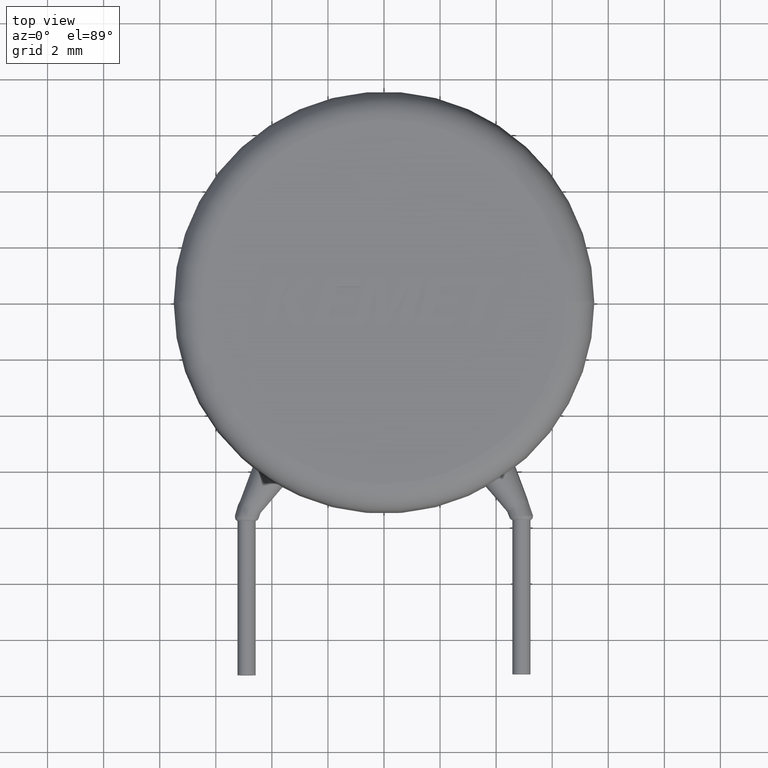
[diagram: clean part render]
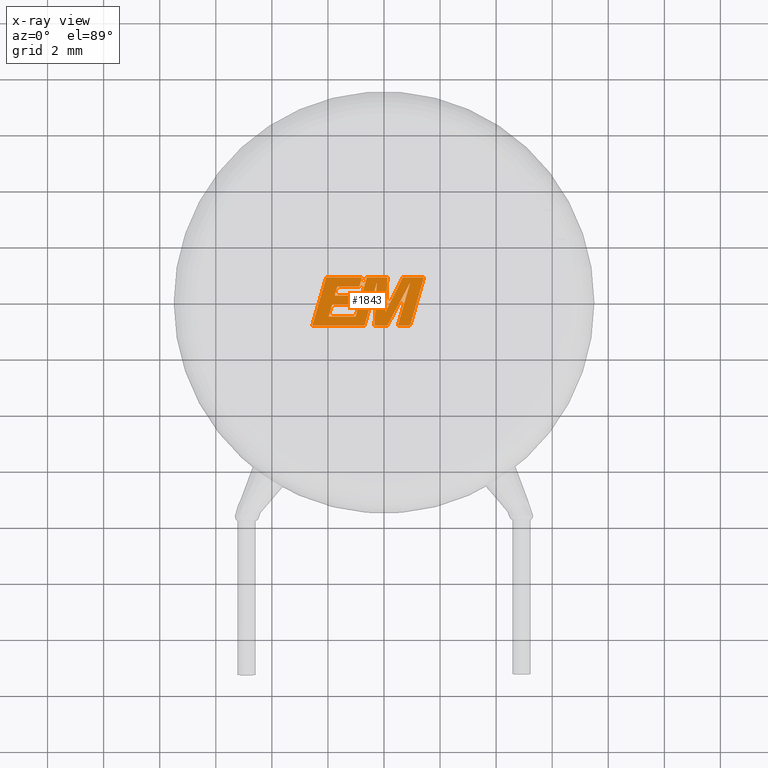
[diagram: x-ray — body ghosted, one internal face saturated and labeled with its STEP entity id]
A machine part, top view, then the same camera in x-ray: the body is ghosted and one INTERNAL B-rep face — a face not visible from any outside direction — is saturated and labeled: STEP entity #1843.
In plain terms, the highlighted planar face has unit normal (0, 0, -1).
Its self-contained STEP definition (entity closure, byte-faithful):
#50 = CARTESIAN_POINT ( 'NONE',  ( -1.017504459718363300, 0.2098571091604507800, 5.000000000000000000 ) ) ;
#81 = EDGE_CURVE ( 'NONE', #683, #3268, #2458, .T. ) ;
#82 = VECTOR ( 'NONE', #2614, 1000.000000000000200 ) ;
#92 = VERTEX_POINT ( 'NONE', #3478 ) ;
#97 = CARTESIAN_POINT ( 'NONE',  ( -0.6125567032797602000, 0.8602294998000967800, 5.000000000000000000 ) ) ;
#99 = EDGE_CURVE ( 'NONE', #1862, #3278, #4065, .T. ) ;
#152 = LINE ( 'NONE', #2195, #1736 ) ;
#172 = VECTOR ( 'NONE', #4019, 1000.000000000000000 ) ;
#194 = LINE ( 'NONE', #3070, #3545 ) ;
#228 = CARTESIAN_POINT ( 'NONE',  ( 0.9351417871598828300, 0.6780171967097181600, 5.000000000000000000 ) ) ;
#237 = EDGE_CURVE ( 'NONE', #3530, #2532, #152, .T. ) ;
#249 = DIRECTION ( 'NONE',  ( -1.000000000000000000, 0.0000000000000000000, 0.0000000000000000000 ) ) ;
#251 = CARTESIAN_POINT ( 'NONE',  ( -1.972762061372847200, -0.5391223143760577300, 5.000000000000000000 ) ) ;
#272 = VERTEX_POINT ( 'NONE', #4120 ) ;
#281 = CARTESIAN_POINT ( 'NONE',  ( -0.2554201702473944400, 0.6706082701233900800, 5.000000000000000000 ) ) ;
#312 = ORIENTED_EDGE ( 'NONE', *, *, #1623, .F. ) ;
#326 = DIRECTION ( 'NONE',  ( -0.2760118818968563800, -0.9611542233438689100, 0.0000000000000000000 ) ) ;
#359 = ORIENTED_EDGE ( 'NONE', *, *, #3674, .F. ) ;
#385 = DIRECTION ( 'NONE',  ( 1.000000000000000000, 3.776457229960508900E-016, 0.0000000000000000000 ) ) ;
#397 = DIRECTION ( 'NONE',  ( -0.2765379750249957200, -0.9610029908221278100, 0.0000000000000000000 ) ) ;
#402 = CARTESIAN_POINT ( 'NONE',  ( -0.8783532583318647300, 0.5312889228852595300, 5.000000000000000000 ) ) ;
#404 = VERTEX_POINT ( 'NONE', #2654 ) ;
#410 = CARTESIAN_POINT ( 'NONE',  ( -2.061611380304933400, 0.8602294998000965500, 5.000000000000000000 ) ) ;
#424 = VERTEX_POINT ( 'NONE', #3937 ) ;
#432 = CARTESIAN_POINT ( 'NONE',  ( -0.7849272194875383000, 0.8602294998000967800, 5.000000000000000000 ) ) ;
#440 = VECTOR ( 'NONE', #3413, 1000.000000000000100 ) ;
#442 = CARTESIAN_POINT ( 'NONE',  ( 0.1233925116584889700, 0.8602294998000970000, 5.000000000000000000 ) ) ;
#463 = ORIENTED_EDGE ( 'NONE', *, *, #2191, .F. ) ;
#478 = VERTEX_POINT ( 'NONE', #3644 ) ;
#509 = ORIENTED_EDGE ( 'NONE', *, *, #1857, .F. ) ;
#513 = EDGE_CURVE ( 'NONE', #404, #272, #1519, .T. ) ;
#521 = LINE ( 'NONE', #4022, #1929 ) ;
#525 = DIRECTION ( 'NONE',  ( -1.000000000000000000, -9.098923155897415200E-017, 0.0000000000000000000 ) ) ;
#596 = CARTESIAN_POINT ( 'NONE',  ( -1.850383408691019600, -0.1096147544810094200, 5.000000000000000000 ) ) ;
#599 = EDGE_CURVE ( 'NONE', #4091, #1862, #194, .T. ) ;
#624 = VERTEX_POINT ( 'NONE', #2554 ) ;
#637 = EDGE_CURVE ( 'NONE', #92, #404, #938, .T. ) ;
#664 = CARTESIAN_POINT ( 'NONE',  ( 1.427199603882118400, 0.8602294998000972200, 5.000000000000000000 ) ) ;
#683 = VERTEX_POINT ( 'NONE', #2988 ) ;
#770 = DIRECTION ( 'NONE',  ( -1.000000000000000000, -3.156862141527944500E-016, 0.0000000000000000000 ) ) ;
#816 = VERTEX_POINT ( 'NONE', #1365 ) ;
#818 = DIRECTION ( 'NONE',  ( 0.2740217765954076100, 0.9617234872620593600, 0.0000000000000000000 ) ) ;
#842 = VECTOR ( 'NONE', #397, 1000.000000000000200 ) ;
#847 = DIRECTION ( 'NONE',  ( 0.2793947940878323000, 0.9601763114327586100, 0.0000000000000000000 ) ) ;
#865 = ORIENTED_EDGE ( 'NONE', *, *, #3880, .F. ) ;
#896 = CARTESIAN_POINT ( 'NONE',  ( -0.3416579739304280700, -0.8679000000000540700, 5.000000000000000000 ) ) ;
#923 = DIRECTION ( 'NONE',  ( 1.000000000000000000, 0.0000000000000000000, 0.0000000000000000000 ) ) ;
#931 = LINE ( 'NONE', #1615, #82 ) ;
#936 = LINE ( 'NONE', #2844, #2789 ) ;
#938 = LINE ( 'NONE', #4156, #3748 ) ;
#964 = CARTESIAN_POINT ( 'NONE',  ( -1.017504459718363300, 0.2098571091604507800, 5.000000000000000000 ) ) ;
#973 = VERTEX_POINT ( 'NONE', #2884 ) ;
#988 = CARTESIAN_POINT ( 'NONE',  ( 0.1190458960107351500, -0.8679000000000538500, 5.000000000000000000 ) ) ;
#991 = VERTEX_POINT ( 'NONE', #1883 ) ;
#1039 = VERTEX_POINT ( 'NONE', #97 ) ;
#1043 = ORIENTED_EDGE ( 'NONE', *, *, #2027, .F. ) ;
#1065 = VECTOR ( 'NONE', #2305, 1000.000000000000000 ) ;
#1066 = CARTESIAN_POINT ( 'NONE',  ( -1.665706717958818100, 0.5312889228852595300, 5.000000000000000000 ) ) ;
#1077 = EDGE_CURVE ( 'NONE', #3338, #424, #3283, .T. ) ;
#1092 = ORIENTED_EDGE ( 'NONE', *, *, #637, .F. ) ;
#1112 = DIRECTION ( 'NONE',  ( 0.2746459304916913900, 0.9615454294334474500, 0.0000000000000000000 ) ) ;
#1136 = LINE ( 'NONE', #2286, #3636 ) ;
#1141 = ORIENTED_EDGE ( 'NONE', *, *, #2514, .F. ) ;
#1173 = CARTESIAN_POINT ( 'NONE',  ( -0.7849272194875383000, 0.8602294998000967800, 5.000000000000000000 ) ) ;
#1213 = EDGE_CURVE ( 'NONE', #973, #816, #2167, .T. ) ;
#1242 = ORIENTED_EDGE ( 'NONE', *, *, #513, .F. ) ;
#1299 = VECTOR ( 'NONE', #2719, 1000.000000000000000 ) ;
#1322 = ORIENTED_EDGE ( 'NONE', *, *, #237, .F. ) ;
#1328 = DIRECTION ( 'NONE',  ( -1.000000000000000000, 0.0000000000000000000, 0.0000000000000000000 ) ) ;
#1349 = VERTEX_POINT ( 'NONE', #251 ) ;
#1363 = VECTOR ( 'NONE', #818, 1000.000000000000200 ) ;
#1365 = CARTESIAN_POINT ( 'NONE',  ( 0.9303496303870425500, -0.8679000000000538500, 5.000000000000000000 ) ) ;
#1381 = CARTESIAN_POINT ( 'NONE',  ( 1.427199603882118400, 0.8602294998000972200, 5.000000000000000000 ) ) ;
#1405 = ORIENTED_EDGE ( 'NONE', *, *, #3152, .F. ) ;
#1406 = ORIENTED_EDGE ( 'NONE', *, *, #599, .F. ) ;
#1519 = LINE ( 'NONE', #1796, #440 ) ;
#1566 = VECTOR ( 'NONE', #2376, 999.9999999999998900 ) ;
#1567 = AXIS2_PLACEMENT_3D ( 'NONE', #1892, #2199, #249 ) ;
#1574 = VECTOR ( 'NONE', #2432, 1000.000000000000000 ) ;
#1577 = DIRECTION ( 'NONE',  ( -0.05596501978068215600, -0.9984327301130245800, 0.0000000000000000000 ) ) ;
#1606 = DIRECTION ( 'NONE',  ( 1.000000000000000000, 2.645246203865972700E-016, 0.0000000000000000000 ) ) ;
#1615 = CARTESIAN_POINT ( 'NONE',  ( -0.6125567032797602000, 0.8602294998000967800, 5.000000000000000000 ) ) ;
#1623 = EDGE_CURVE ( 'NONE', #2787, #3530, #2166, .T. ) ;
#1655 = EDGE_CURVE ( 'NONE', #816, #3539, #521, .T. ) ;
#1689 = CARTESIAN_POINT ( 'NONE',  ( -1.665706717958818100, 0.5312889228852595300, 5.000000000000000000 ) ) ;
#1711 = VERTEX_POINT ( 'NONE', #3767 ) ;
#1736 = VECTOR ( 'NONE', #1854, 1000.000000000000100 ) ;
#1751 = VECTOR ( 'NONE', #3434, 1000.000000000000000 ) ;
#1769 = VECTOR ( 'NONE', #1606, 1000.000000000000000 ) ;
#1796 = CARTESIAN_POINT ( 'NONE',  ( -0.6971708499694481100, -0.8679000000000540700, 5.000000000000000000 ) ) ;
#1818 = CARTESIAN_POINT ( 'NONE',  ( 0.6692537587565817700, 0.8602294998000970000, 5.000000000000000000 ) ) ;
#1843 = ADVANCED_FACE ( 'NONE', ( #3843 ), #2490, .T. ) ;
#1854 = DIRECTION ( 'NONE',  ( 0.2732148821745866200, 0.9619530280415601300, 0.0000000000000000000 ) ) ;
#1857 = EDGE_CURVE ( 'NONE', #2532, #991, #3223, .T. ) ;
#1862 = VERTEX_POINT ( 'NONE', #2816 ) ;
#1883 = CARTESIAN_POINT ( 'NONE',  ( -2.061611380304933400, 0.8602294998000965500, 5.000000000000000000 ) ) ;
#1892 = CARTESIAN_POINT ( 'NONE',  ( 0.05747670520601499300, 0.1583361317231066200, 4.999999999999998200 ) ) ;
#1929 = VECTOR ( 'NONE', #3969, 1000.000000000000000 ) ;
#1965 = EDGE_CURVE ( 'NONE', #3278, #973, #1136, .T. ) ;
#1971 = ORIENTED_EDGE ( 'NONE', *, *, #81, .F. ) ;
#2027 = EDGE_CURVE ( 'NONE', #424, #1039, #2983, .T. ) ;
#2045 = CARTESIAN_POINT ( 'NONE',  ( 0.05693359268403499300, -0.3743684185971242200, 5.000000000000000000 ) ) ;
#2071 = EDGE_LOOP ( 'NONE', ( #1141, #3222, #2771, #2081, #3085, #1406, #3777, #1242, #1092, #2491, #509, #1322, #312, #463, #2153, #359, #1971, #3128, #4171, #865, #1043, #3255, #1405 ) ) ;
#2081 = ORIENTED_EDGE ( 'NONE', *, *, #1965, .F. ) ;
#2131 = LINE ( 'NONE', #410, #842 ) ;
#2132 = DIRECTION ( 'NONE',  ( 1.000000000000000000, 2.521457237837486500E-016, 0.0000000000000000000 ) ) ;
#2153 = ORIENTED_EDGE ( 'NONE', *, *, #2437, .F. ) ;
#2166 = LINE ( 'NONE', #1066, #1299 ) ;
#2167 = LINE ( 'NONE', #2879, #1769 ) ;
#2191 = EDGE_CURVE ( 'NONE', #624, #2787, #4040, .T. ) ;
#2195 = CARTESIAN_POINT ( 'NONE',  ( -0.8783532583318647300, 0.5312889228852595300, 5.000000000000000000 ) ) ;
#2196 = LINE ( 'NONE', #4062, #1751 ) ;
#2199 = DIRECTION ( 'NONE',  ( 0.0000000000000000000, 0.0000000000000000000, -1.000000000000000000 ) ) ;
#2200 = VERTEX_POINT ( 'NONE', #964 ) ;
#2257 = EDGE_CURVE ( 'NONE', #272, #4091, #4172, .T. ) ;
#2286 = CARTESIAN_POINT ( 'NONE',  ( 0.9351417871598828300, 0.6780171967097181600, 5.000000000000000000 ) ) ;
#2305 = DIRECTION ( 'NONE',  ( 0.4668459304955212600, 0.8843386665637610300, 0.0000000000000000000 ) ) ;
#2376 = DIRECTION ( 'NONE',  ( 0.05375259206908306100, 0.9985542843760948400, 0.0000000000000000000 ) ) ;
#2430 = VECTOR ( 'NONE', #770, 1000.000000000000000 ) ;
#2432 = DIRECTION ( 'NONE',  ( -0.4443210308329058600, -0.8958676361827030400, 0.0000000000000000000 ) ) ;
#2437 = EDGE_CURVE ( 'NONE', #2200, #624, #3684, .T. ) ;
#2449 = CARTESIAN_POINT ( 'NONE',  ( 0.05693359268403499300, -0.3743684185971242200, 5.000000000000000000 ) ) ;
#2458 = LINE ( 'NONE', #596, #2606 ) ;
#2490 = PLANE ( 'NONE',  #1567 ) ;
#2491 = ORIENTED_EDGE ( 'NONE', *, *, #2888, .F. ) ;
#2514 = EDGE_CURVE ( 'NONE', #3539, #478, #3827, .T. ) ;
#2532 = VERTEX_POINT ( 'NONE', #432 ) ;
#2554 = CARTESIAN_POINT ( 'NONE',  ( -1.759237847960259100, 0.2098571091604507800, 5.000000000000000000 ) ) ;
#2585 = VECTOR ( 'NONE', #525, 1000.000000000000000 ) ;
#2606 = VECTOR ( 'NONE', #923, 1000.000000000000000 ) ;
#2614 = DIRECTION ( 'NONE',  ( -0.2762517575166125700, -0.9610853065513916800, 0.0000000000000000000 ) ) ;
#2649 = EDGE_CURVE ( 'NONE', #1711, #1349, #2196, .T. ) ;
#2654 = CARTESIAN_POINT ( 'NONE',  ( -0.6971708499694481100, -0.8679000000000540700, 5.000000000000000000 ) ) ;
#2719 = DIRECTION ( 'NONE',  ( 1.000000000000000000, 0.0000000000000000000, 0.0000000000000000000 ) ) ;
#2771 = ORIENTED_EDGE ( 'NONE', *, *, #1213, .F. ) ;
#2787 = VERTEX_POINT ( 'NONE', #1689 ) ;
#2789 = VECTOR ( 'NONE', #1112, 1000.000000000000100 ) ;
#2816 = CARTESIAN_POINT ( 'NONE',  ( 0.1190458960107351500, -0.8679000000000538500, 5.000000000000000000 ) ) ;
#2844 = CARTESIAN_POINT ( 'NONE',  ( -1.108755111606357600, -0.1096147544810094200, 5.000000000000000000 ) ) ;
#2879 = CARTESIAN_POINT ( 'NONE',  ( 0.4912052113665498800, -0.8679000000000538500, 5.000000000000000000 ) ) ;
#2884 = CARTESIAN_POINT ( 'NONE',  ( 0.4912052113665498800, -0.8679000000000538500, 5.000000000000000000 ) ) ;
#2888 = EDGE_CURVE ( 'NONE', #991, #92, #2131, .T. ) ;
#2979 = VECTOR ( 'NONE', #1328, 1000.000000000000000 ) ;
#2983 = LINE ( 'NONE', #442, #2430 ) ;
#2988 = CARTESIAN_POINT ( 'NONE',  ( -1.850383408691019600, -0.1096147544810094200, 5.000000000000000000 ) ) ;
#3070 = CARTESIAN_POINT ( 'NONE',  ( -0.3416579739304280700, -0.8679000000000540700, 5.000000000000000000 ) ) ;
#3085 = ORIENTED_EDGE ( 'NONE', *, *, #99, .F. ) ;
#3128 = ORIENTED_EDGE ( 'NONE', *, *, #3427, .F. ) ;
#3152 = EDGE_CURVE ( 'NONE', #478, #3338, #3296, .T. ) ;
#3208 = CARTESIAN_POINT ( 'NONE',  ( -1.108755111606357600, -0.1096147544810094200, 5.000000000000000000 ) ) ;
#3222 = ORIENTED_EDGE ( 'NONE', *, *, #1655, .F. ) ;
#3223 = LINE ( 'NONE', #1173, #2585 ) ;
#3255 = ORIENTED_EDGE ( 'NONE', *, *, #1077, .F. ) ;
#3268 = VERTEX_POINT ( 'NONE', #3208 ) ;
#3278 = VERTEX_POINT ( 'NONE', #228 ) ;
#3283 = LINE ( 'NONE', #2045, #1566 ) ;
#3296 = LINE ( 'NONE', #1818, #1574 ) ;
#3331 = VECTOR ( 'NONE', #1577, 1000.000000000000100 ) ;
#3338 = VERTEX_POINT ( 'NONE', #2449 ) ;
#3413 = DIRECTION ( 'NONE',  ( 0.2759782365590801000, 0.9611638845408936300, 0.0000000000000000000 ) ) ;
#3421 = CARTESIAN_POINT ( 'NONE',  ( -1.972762061372847200, -0.5391223143760577300, 5.000000000000000000 ) ) ;
#3427 = EDGE_CURVE ( 'NONE', #1349, #683, #4143, .T. ) ;
#3434 = DIRECTION ( 'NONE',  ( -1.000000000000000000, 0.0000000000000000000, 0.0000000000000000000 ) ) ;
#3478 = CARTESIAN_POINT ( 'NONE',  ( -2.558897483490585300, -0.8679000000000545200, 5.000000000000000000 ) ) ;
#3530 = VERTEX_POINT ( 'NONE', #402 ) ;
#3539 = VERTEX_POINT ( 'NONE', #1381 ) ;
#3545 = VECTOR ( 'NONE', #2132, 1000.000000000000000 ) ;
#3579 = VECTOR ( 'NONE', #847, 1000.000000000000100 ) ;
#3636 = VECTOR ( 'NONE', #326, 1000.000000000000100 ) ;
#3644 = CARTESIAN_POINT ( 'NONE',  ( 0.6692537587565817700, 0.8602294998000970000, 5.000000000000000000 ) ) ;
#3674 = EDGE_CURVE ( 'NONE', #3268, #2200, #936, .T. ) ;
#3684 = LINE ( 'NONE', #50, #2979 ) ;
#3748 = VECTOR ( 'NONE', #385, 1000.000000000000000 ) ;
#3767 = CARTESIAN_POINT ( 'NONE',  ( -1.014782598749271100, -0.5391223143760577300, 5.000000000000000000 ) ) ;
#3771 = CARTESIAN_POINT ( 'NONE',  ( -1.759237847960259100, 0.2098571091604507800, 5.000000000000000000 ) ) ;
#3777 = ORIENTED_EDGE ( 'NONE', *, *, #2257, .F. ) ;
#3827 = LINE ( 'NONE', #664, #172 ) ;
#3843 = FACE_OUTER_BOUND ( 'NONE', #2071, .T. ) ;
#3880 = EDGE_CURVE ( 'NONE', #1039, #1711, #931, .T. ) ;
#3937 = CARTESIAN_POINT ( 'NONE',  ( 0.1233925116584889700, 0.8602294998000970000, 5.000000000000000000 ) ) ;
#3969 = DIRECTION ( 'NONE',  ( 0.2763139702539116900, 0.9610674221107072800, 0.0000000000000000000 ) ) ;
#4019 = DIRECTION ( 'NONE',  ( -1.000000000000000000, -3.065245663218813700E-016, 0.0000000000000000000 ) ) ;
#4022 = CARTESIAN_POINT ( 'NONE',  ( 0.9303496303870425500, -0.8679000000000538500, 5.000000000000000000 ) ) ;
#4040 = LINE ( 'NONE', #3771, #3579 ) ;
#4062 = CARTESIAN_POINT ( 'NONE',  ( -1.014782598749271100, -0.5391223143760577300, 5.000000000000000000 ) ) ;
#4065 = LINE ( 'NONE', #988, #1065 ) ;
#4091 = VERTEX_POINT ( 'NONE', #896 ) ;
#4120 = CARTESIAN_POINT ( 'NONE',  ( -0.2554201702473944400, 0.6706082701233900800, 5.000000000000000000 ) ) ;
#4143 = LINE ( 'NONE', #3421, #1363 ) ;
#4156 = CARTESIAN_POINT ( 'NONE',  ( -1.004772667394249900, -0.8679000000000542900, 5.000000000000000000 ) ) ;
#4171 = ORIENTED_EDGE ( 'NONE', *, *, #2649, .F. ) ;
#4172 = LINE ( 'NONE', #281, #3331 ) ;